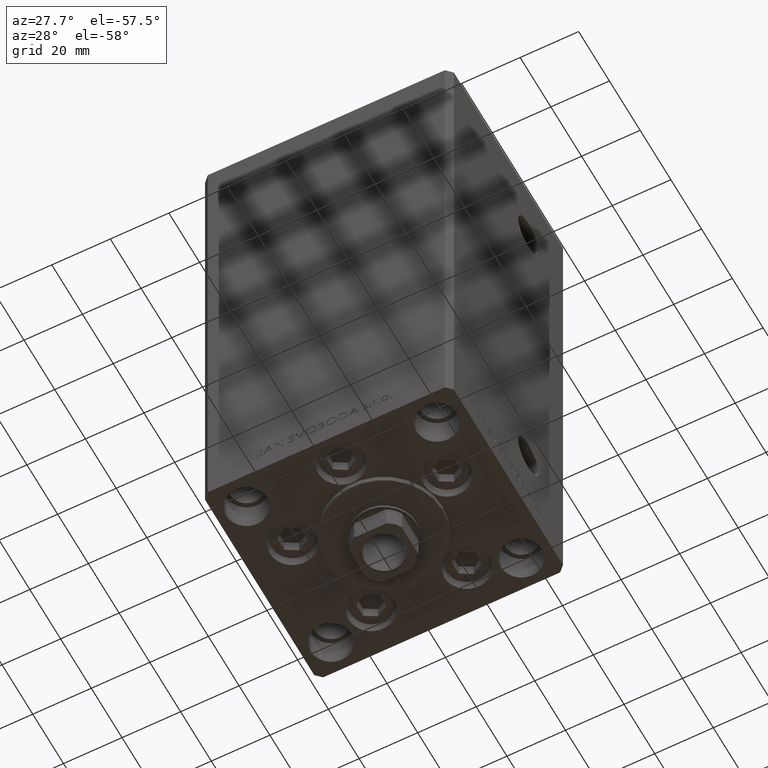
[diagram: clean part render]
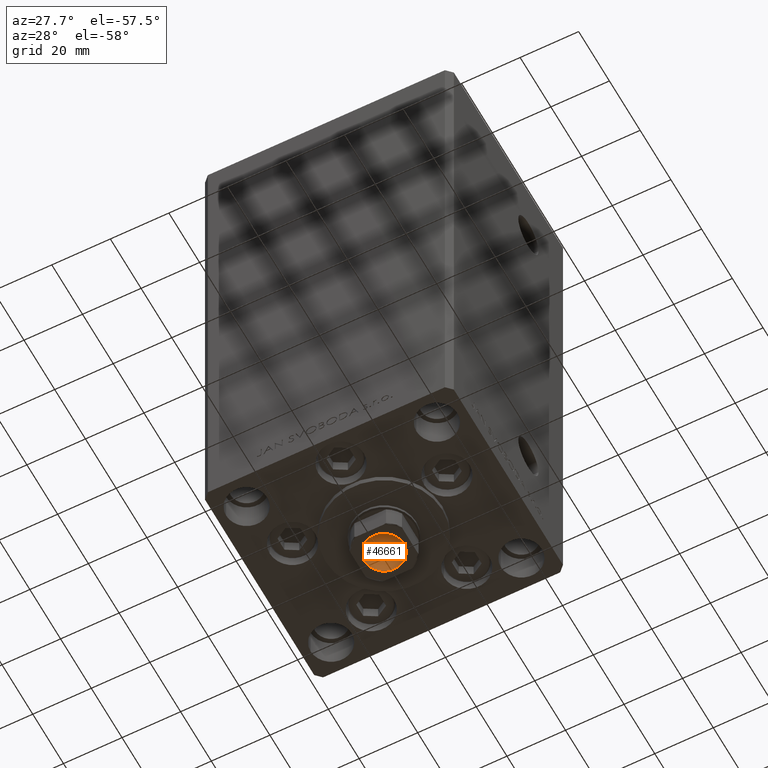
[diagram: same view with one face highlighted and labeled with its STEP entity id]
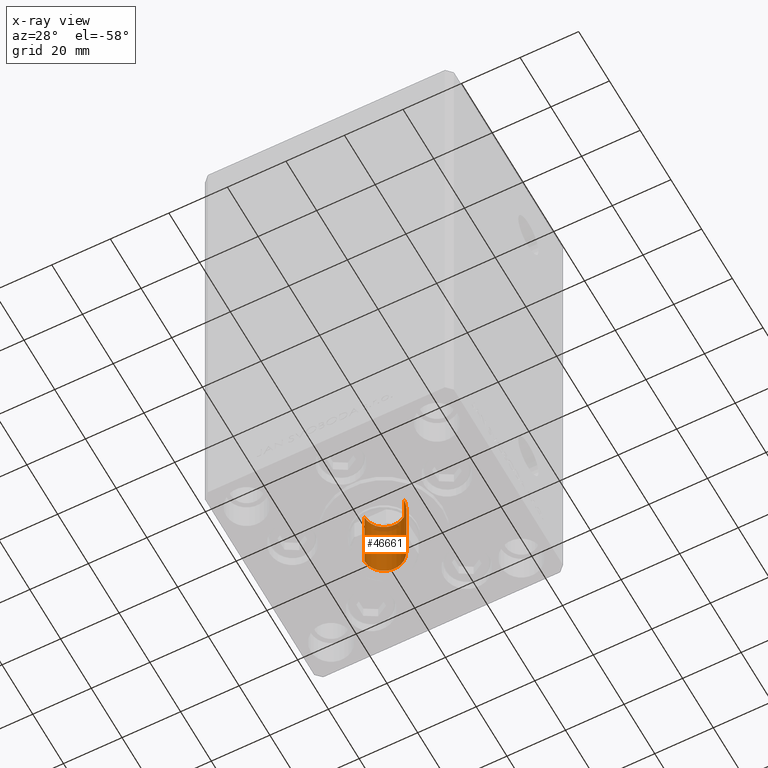
[diagram: x-ray of the same camera — body ghosted, the highlighted face saturated]
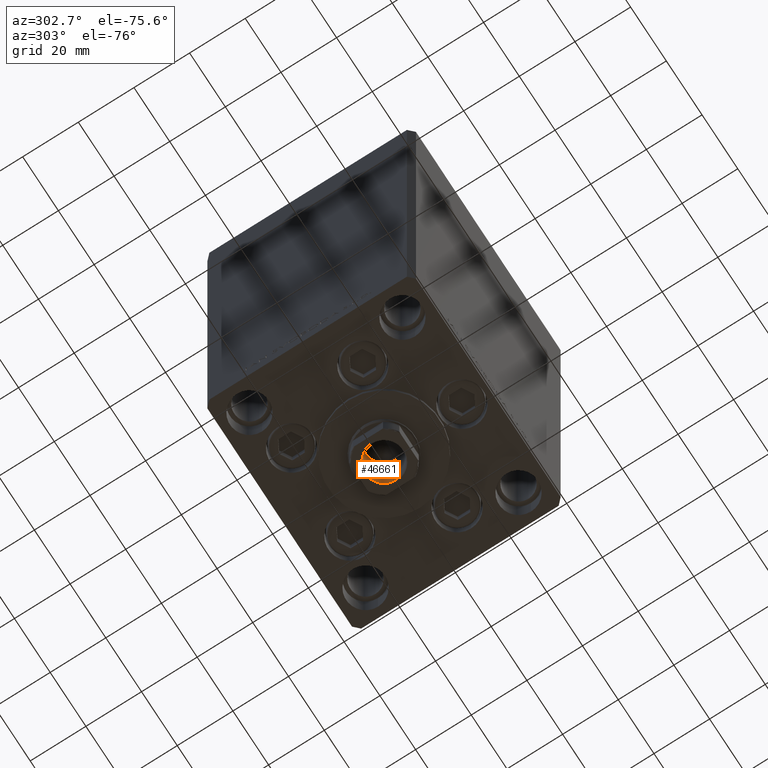
[diagram: same view with one face highlighted and labeled with its STEP entity id]
A machine part, auxiliary view. The second image highlights one B-rep face of the part: STEP entity #46661.
The next image is the same camera in x-ray: the body ghosted, the highlighted face saturated — about 7% of this face is hidden behind the body in this view.
A second angle (auxiliary view) of the same face is appended — the face is thin or edge-on in the first view.
In plain terms, the highlighted cylindrical surface (edge-blend (fillet) strip) has radius 6.75 mm, axis along (0, 0, -1).
Its self-contained STEP definition (entity closure, byte-faithful):
#364 = CARTESIAN_POINT ( 'NONE',  ( -6.749999999999995559, 8.266365894244628417E-16, 155.4499999999999886 ) ) ;
#467 = DIRECTION ( 'NONE',  ( 1.000000000000000000, 0.000000000000000000, 0.000000000000000000 ) ) ;
#4137 = ORIENTED_EDGE ( 'NONE', *, *, #36855, .T. ) ;
#4766 = LINE ( 'NONE', #35148, #36655 ) ;
#4939 = AXIS2_PLACEMENT_3D ( 'NONE', #17640, #28590, #5689 ) ;
#5689 = DIRECTION ( 'NONE',  ( 1.000000000000000000, 0.000000000000000000, 0.000000000000000000 ) ) ;
#7987 = CARTESIAN_POINT ( 'NONE',  ( 6.749999999999995559, 0.000000000000000000, 155.7500000000000000 ) ) ;
#9631 = AXIS2_PLACEMENT_3D ( 'NONE', #38416, #46867, #46142 ) ;
#10244 = AXIS2_PLACEMENT_3D ( 'NONE', #26615, #26120, #467 ) ;
#11712 = LINE ( 'NONE', #7987, #30953 ) ;
#13939 = EDGE_LOOP ( 'NONE', ( #34724, #43539, #4137, #26382 ) ) ;
#14191 = EDGE_CURVE ( 'NONE', #48353, #20815, #4766, .T. ) ;
#14703 = VERTEX_POINT ( 'NONE', #46013 ) ;
#15948 = DIRECTION ( 'NONE',  ( -0.000000000000000000, -0.000000000000000000, 1.000000000000000000 ) ) ;
#16833 = EDGE_CURVE ( 'NONE', #14703, #48353, #40717, .T. ) ;
#17640 = CARTESIAN_POINT ( 'NONE',  ( 0.000000000000000000, 0.000000000000000000, 130.7500000000000000 ) ) ;
#20815 = VERTEX_POINT ( 'NONE', #364 ) ;
#24910 = CARTESIAN_POINT ( 'NONE',  ( 6.749999999999995559, 0.000000000000000000, 155.4499999999999886 ) ) ;
#26120 = DIRECTION ( 'NONE',  ( 0.000000000000000000, 0.000000000000000000, 1.000000000000000000 ) ) ;
#26382 = ORIENTED_EDGE ( 'NONE', *, *, #36281, .T. ) ;
#26615 = CARTESIAN_POINT ( 'NONE',  ( 0.000000000000000000, 0.000000000000000000, 155.4499999999999886 ) ) ;
#27440 = FACE_OUTER_BOUND ( 'NONE', #13939, .T. ) ;
#28590 = DIRECTION ( 'NONE',  ( -0.000000000000000000, -0.000000000000000000, 1.000000000000000000 ) ) ;
#29574 = VERTEX_POINT ( 'NONE', #24910 ) ;
#30953 = VECTOR ( 'NONE', #15948, 1000.000000000000000 ) ;
#34724 = ORIENTED_EDGE ( 'NONE', *, *, #14191, .F. ) ;
#35148 = CARTESIAN_POINT ( 'NONE',  ( -6.749999999999995559, 8.266365894244628417E-16, 155.7500000000000000 ) ) ;
#35708 = CIRCLE ( 'NONE', #10244, 6.749999999999995559 ) ;
#36281 = EDGE_CURVE ( 'NONE', #29574, #20815, #35708, .T. ) ;
#36655 = VECTOR ( 'NONE', #46611, 1000.000000000000000 ) ;
#36855 = EDGE_CURVE ( 'NONE', #14703, #29574, #11712, .T. ) ;
#37823 = CARTESIAN_POINT ( 'NONE',  ( -6.749999999999993783, 8.266365894244626445E-16, 130.7500000000000000 ) ) ;
#38416 = CARTESIAN_POINT ( 'NONE',  ( 0.000000000000000000, 0.000000000000000000, 155.7500000000000000 ) ) ;
#40717 = CIRCLE ( 'NONE', #4939, 6.749999999999993783 ) ;
#43539 = ORIENTED_EDGE ( 'NONE', *, *, #16833, .F. ) ;
#46013 = CARTESIAN_POINT ( 'NONE',  ( 6.749999999999993783, 0.000000000000000000, 130.7500000000000000 ) ) ;
#46142 = DIRECTION ( 'NONE',  ( 1.000000000000000000, 0.000000000000000000, 0.000000000000000000 ) ) ;
#46611 = DIRECTION ( 'NONE',  ( -0.000000000000000000, -0.000000000000000000, 1.000000000000000000 ) ) ;
#46625 = CYLINDRICAL_SURFACE ( 'NONE', #9631, 6.749999999999995559 ) ;
#46661 = ADVANCED_FACE ( 'NONE', ( #27440 ), #46625, .F. ) ;
#46867 = DIRECTION ( 'NONE',  ( -0.000000000000000000, -0.000000000000000000, 1.000000000000000000 ) ) ;
#48353 = VERTEX_POINT ( 'NONE', #37823 ) ;